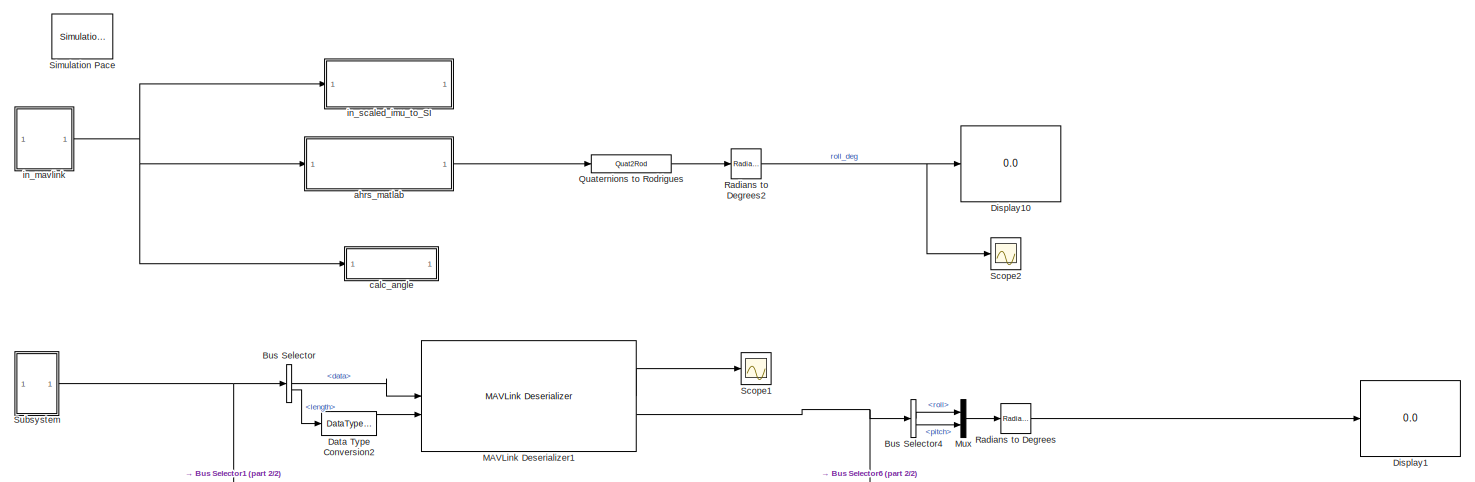
[diagram: root canvas - part 1/2, full width, middle band]
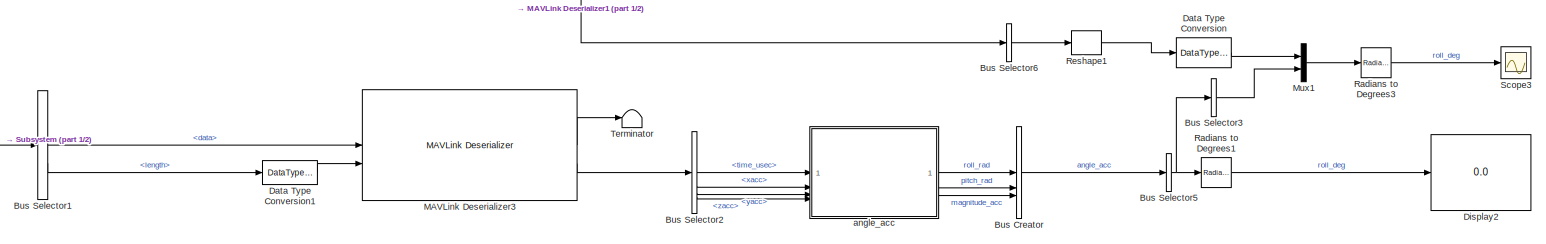
[diagram: root canvas - part 2/2, full width, bottom band]
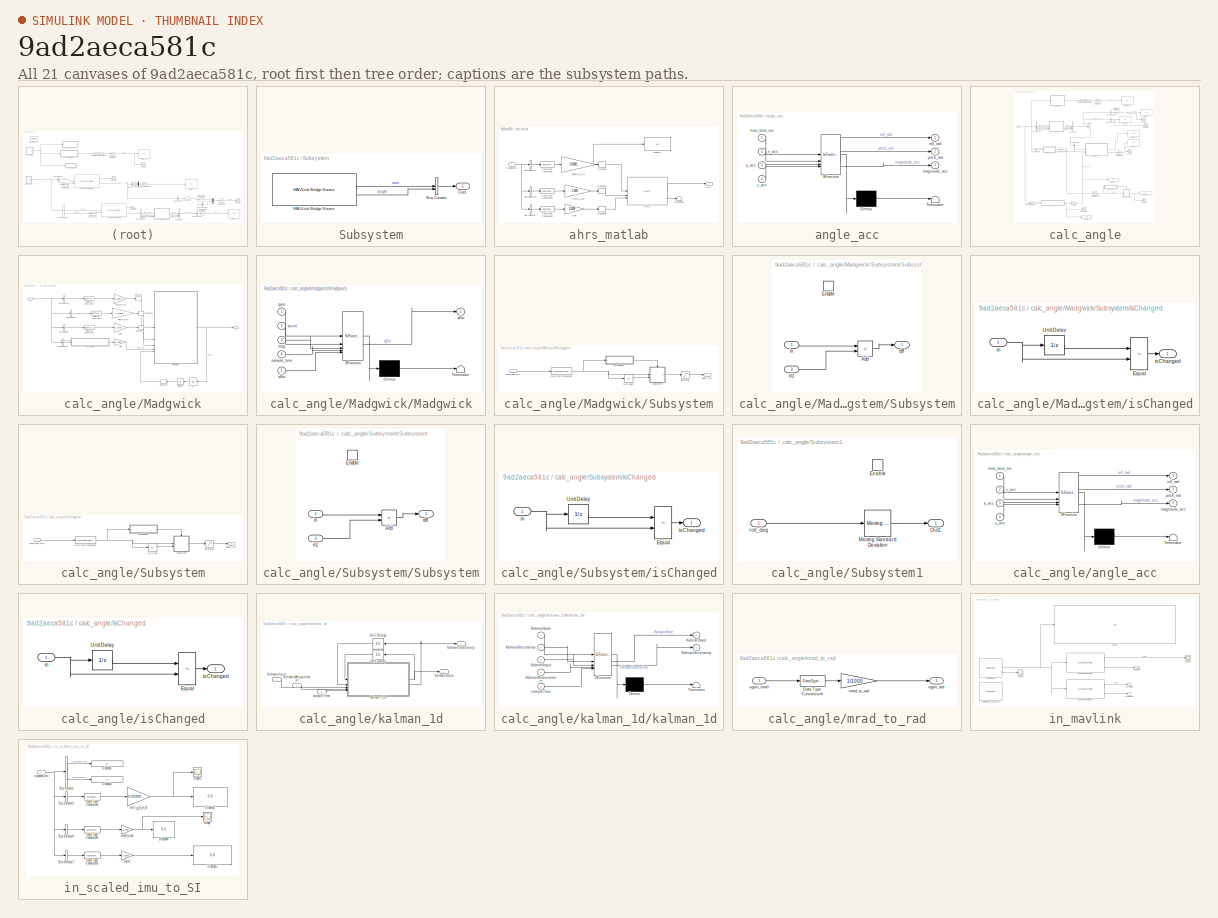
[diagram: thumbnail index - all 21 canvases of the model, root first then tree order]
MODEL slx_9ad2aeca581c
KIND model
CONFIG AbsTol = auto
CONFIG EnableMultiTasking = off
CONFIG FixedStep = sampleTime
CONFIG MaxStep = auto
CONFIG MinStep = auto
CONFIG RelTol = 1e-3
CONFIG SampleTimeConstraint = Unconstrained
CONFIG SolverName = ode4
CONFIG StartTime = 0.0
CONFIG StopTime = 100
BLOCK [BusCreator] Bus Creator
  DisplayOption = bar
  InheritFromInputs = on
  Inputs = 3
BLOCK [BusSelector] Bus Selector
  OutputSignals = data,length
BLOCK [BusSelector] Bus Selector1
  OutputSignals = data,length
BLOCK [BusSelector] Bus Selector2
  OutputSignals = Payload.time_usec,Payload.xacc,Payload.yacc,Payload.zacc
BLOCK [BusSelector] Bus Selector3
  OutputAsBus = on
  OutputSignals = roll_rad
BLOCK [BusSelector] Bus Selector4
  OutputSignals = Payload.roll,Payload.pitch
BLOCK [BusSelector] Bus Selector5
  OutputAsBus = on
  OutputSignals = roll_rad,pitch_rad
BLOCK [BusSelector] Bus Selector6
  OutputAsBus = on
  OutputSignals = Payload.roll
BLOCK [DataTypeConversion] Data Type Conversion
  OutDataTypeStr = double
  RndMeth = Floor
  SaturateOnIntegerOverflow = off
BLOCK [DataTypeConversion] Data Type Conversion1
  RndMeth = Floor
  SaturateOnIntegerOverflow = off
BLOCK [DataTypeConversion] Data Type Conversion2
  RndMeth = Floor
  SaturateOnIntegerOverflow = off
BLOCK [Display] Display1
  Decimation = 1
BLOCK [Display] Display10
  Decimation = 1
BLOCK [Display] Display2
  Decimation = 1
BLOCK [Reference] MAVLink Deserializer1  REF=uavmavlinklib/MAVLink Deserializer
  SourceBlock = uavmavlinklib/MAVLink Deserializer
  SourceType = MAVLink Deserializer
BLOCK [Reference] MAVLink Deserializer3  REF=uavmavlinklib/MAVLink Deserializer
  SourceBlock = uavmavlinklib/MAVLink Deserializer
  SourceType = MAVLink Deserializer
BLOCK [Mux] Mux
  DisplayOption = bar
  Inputs = 2
BLOCK [Mux] Mux1
  DisplayOption = bar
  Inputs = 2
BLOCK [Quat2Rod] Quaternions to Rodrigues
BLOCK [Reference] Radians to Degrees  REF=simulink_extras/Transformations/Radians
to Degrees
  SourceBlock = simulink_extras/Transformations/Radians\nto Degrees
  SourceType = RadiansToDegrees
BLOCK [Reference] Radians to Degrees1  REF=simulink_extras/Transformations/Radians
to Degrees
  SourceBlock = simulink_extras/Transformations/Radians\nto Degrees
  SourceType = RadiansToDegrees
BLOCK [Reference] Radians to Degrees2  REF=simulink_extras/Transformations/Radians
to Degrees
  SourceBlock = simulink_extras/Transformations/Radians\nto Degrees
  SourceType = RadiansToDegrees
BLOCK [Reference] Radians to Degrees3  REF=simulink_extras/Transformations/Radians
to Degrees
  SourceBlock = simulink_extras/Transformations/Radians\nto Degrees
  SourceType = RadiansToDegrees
BLOCK [Reshape] Reshape1
  OutputDimensionality = Customize
BLOCK [Scope] Scope1
  Floating = off
  NumInputPorts = 1
  ScopeSpecificationString = Simulink.scopes.TimeScopeBlockCfg('CurrentConfiguration', extmgr.ConfigurationSet(extmgr.Configuration('Core','General UI',true),extmgr.Configuration('Core','Source UI',true),extmgr.Configuration('Sources','WiredSimulink',true,'DataLoggingVariableName','ScopeData3'),extmgr.Configuration('Visuals','Time Domain',true,'SerializedDisplays',{struct('MinYLimReal','-0.125','MaxYLimReal','1.125','YLabelRe...<+1512ch>
BLOCK [Scope] Scope2
  Floating = off
  NumInputPorts = 1
  ScopeSpecificationString = Simulink.scopes.TimeScopeBlockCfg('CurrentConfiguration', extmgr.ConfigurationSet(extmgr.Configuration('Core','General UI',true),extmgr.Configuration('Core','Source UI',true),extmgr.Configuration('Sources','WiredSimulink',true,'DataLoggingVariableName','ScopeData4'),extmgr.Configuration('Visuals','Time Domain',true,'SerializedDisplays',{struct('MinYLimReal','-132.99946','MaxYLimReal','217.50957','...<+1542ch>
BLOCK [Scope] Scope3
  Floating = off
  NumInputPorts = 1
  ScopeSpecificationString = Simulink.scopes.TimeScopeBlockCfg('CurrentConfiguration', extmgr.ConfigurationSet(extmgr.Configuration('Core','General UI',true),extmgr.Configuration('Core','Source UI',true),extmgr.Configuration('Sources','WiredSimulink',true,'DataLoggingVariableName','ScopeData4'),extmgr.Configuration('Visuals','Time Domain',true,'SerializedDisplays',{struct('MinYLimReal','-46.7465','MaxYLimReal','57.92269','YLa...<+1581ch>
BLOCK [Reference] Simulation Pace  REF=aerolibanimutils/Simulation Pace
  AttributesFormatString = %<SleepMode>\n%<SimulationPace> sec/sec
  SourceBlock = aerolibanimutils/Simulation Pace
  SourceType = Simulation Pace
BLOCK [SubSystem] Subsystem
BLOCK [BusCreator] Subsystem/Bus Creator
  DisplayOption = bar
  InheritFromInputs = on
  Inputs = 2
BLOCK [Reference] Subsystem/MAVLink Bridge Source  REF=px4MAVLinkBridgelib/MAVLink Bridge Source
  SourceBlock = px4MAVLinkBridgelib/MAVLink Bridge Source
  SourceType = px4.internal.block.MAVLinkSource
BLOCK [Outport] Subsystem/Out1
BLOCK [Terminator] Terminator
BLOCK [SubSystem] ahrs_matlab
BLOCK [Reference] ahrs_matlab/AHRS  REF=mspfiltlib/AHRS
  SourceBlock = mspfiltlib/AHRS
  SourceType = fusion.simulink.ahrsfilter
BLOCK [BusSelector] ahrs_matlab/Bus Selector5
  OutputAsBus = on
  OutputSignals = Payload.xacc,Payload.yacc,Payload.zacc
BLOCK [BusSelector] ahrs_matlab/Bus Selector6
  OutputAsBus = on
  OutputSignals = Payload.xgyro,Payload.ygyro,Payload.zgyro
BLOCK [BusSelector] ahrs_matlab/Bus Selector7
  OutputAsBus = on
  OutputSignals = Payload.xmag,Payload.ymag,Payload.zmag
BLOCK [DataTypeConversion] ahrs_matlab/Data Type Conversion
  OutDataTypeStr = double
  RndMeth = Floor
  SaturateOnIntegerOverflow = off
BLOCK [DataTypeConversion] ahrs_matlab/Data Type Conversion1
  OutDataTypeStr = double
  RndMeth = Floor
  SaturateOnIntegerOverflow = off
BLOCK [DataTypeConversion] ahrs_matlab/Data Type Conversion2
  OutDataTypeStr = double
  RndMeth = Floor
  SaturateOnIntegerOverflow = off
BLOCK [Display] ahrs_matlab/Display11
  Decimation = 1
BLOCK [Gain] ahrs_matlab/Gain
  Gain = 1/1000
BLOCK [Outport] ahrs_matlab/Out1
BLOCK [Reshape] ahrs_matlab/Reshape
  OutputDimensionality = Customize
  OutputDimensions = [1,3]
BLOCK [Reshape] ahrs_matlab/Reshape1
  OutputDimensionality = Customize
  OutputDimensions = [1,3]
BLOCK [Reshape] ahrs_matlab/Reshape2
  OutputDimensionality = Customize
  OutputDimensions = [1,3]
BLOCK [Terminator] ahrs_matlab/Terminator
BLOCK [Inport] ahrs_matlab/in_scaled_imu
BLOCK [Gain] ahrs_matlab/milli_g_to_m_s2
  Gain = 0.00980665
BLOCK [Gain] ahrs_matlab/mrad_to_rad
  Gain = 1/1000
BLOCK [SubSystem] angle_acc
  ErrorFcn = Stateflow.Translate.translate
  PermitHierarchicalResolution = ExplicitOnly
  SFBlockType = MATLAB Function
  TreatAsAtomicUnit = on
BLOCK [Demux] angle_acc/ Demux 
  Outputs = 1
BLOCK [S-Function] angle_acc/ SFunction 
  EnableBusSupport = on
  FunctionName = sf_sfun
  PortCounts = [4 4]
  SFcnIsStateOwnerBlock = off
  SFunctionDeploymentMode = off
  Tag = Stateflow S-Function 4
BLOCK [Terminator] angle_acc/ Terminator 
BLOCK [Outport] angle_acc/magnitude_acc
  Port = 3
BLOCK [Outport] angle_acc/pitch_rad
  Port = 2
BLOCK [Outport] angle_acc/roll_rad
BLOCK [Inport] angle_acc/time_boot_ms
BLOCK [Inport] angle_acc/x_acc
  Port = 2
BLOCK [Inport] angle_acc/y_acc
  Port = 3
BLOCK [Inport] angle_acc/z_acc
  Port = 4
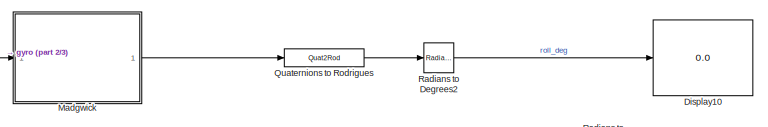
[diagram: calc_angle - part 1/3, top center region]
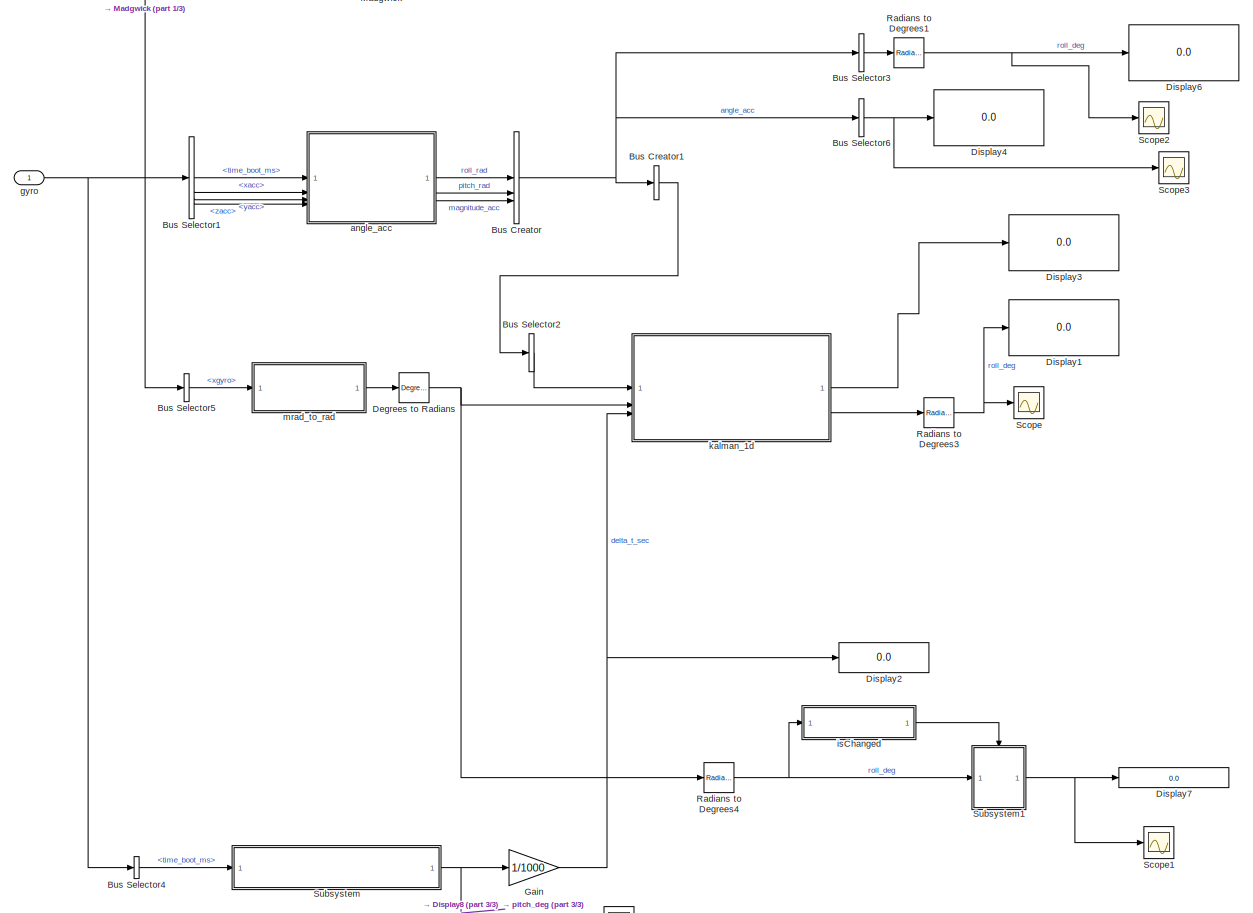
[diagram: calc_angle - part 2/3, most of the canvas]
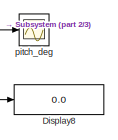
[diagram: calc_angle - part 3/3, bottom center region]
BLOCK [SubSystem] calc_angle
BLOCK [BusCreator] calc_angle/Bus Creator
  DisplayOption = bar
  InheritFromInputs = on
  Inputs = 3
BLOCK [BusCreator] calc_angle/Bus Creator1
  DisplayOption = bar
  InheritFromInputs = on
  Inputs = 1
BLOCK [BusSelector] calc_angle/Bus Selector1
  OutputSignals = Payload.time_boot_ms,Payload.xacc,Payload.yacc,Payload.zacc
BLOCK [BusSelector] calc_angle/Bus Selector2
  OutputAsBus = on
  OutputSignals = angle_acc.roll_rad
BLOCK [BusSelector] calc_angle/Bus Selector3
  OutputAsBus = on
  OutputSignals = roll_rad,pitch_rad
BLOCK [BusSelector] calc_angle/Bus Selector4
  OutputSignals = Payload.time_boot_ms
BLOCK [BusSelector] calc_angle/Bus Selector5
  OutputSignals = Payload.xgyro
BLOCK [BusSelector] calc_angle/Bus Selector6
  OutputAsBus = on
  OutputSignals = magnitude_acc
BLOCK [Reference] calc_angle/Degrees to Radians  REF=simulink_extras/Transformations/Degrees to
Radians
  SourceBlock = simulink_extras/Transformations/Degrees to\nRadians
  SourceType = DegreesToRadians
BLOCK [Display] calc_angle/Display1
  Decimation = 1
BLOCK [Display] calc_angle/Display10
  Decimation = 1
BLOCK [Display] calc_angle/Display2
  Decimation = 1
BLOCK [Display] calc_angle/Display3
  Decimation = 1
BLOCK [Display] calc_angle/Display4
  Decimation = 1
BLOCK [Display] calc_angle/Display6
  Decimation = 1
BLOCK [Display] calc_angle/Display7
  Decimation = 1
  Format = long
BLOCK [Display] calc_angle/Display8
  Decimation = 1
BLOCK [Gain] calc_angle/Gain
  Gain = 1/1000
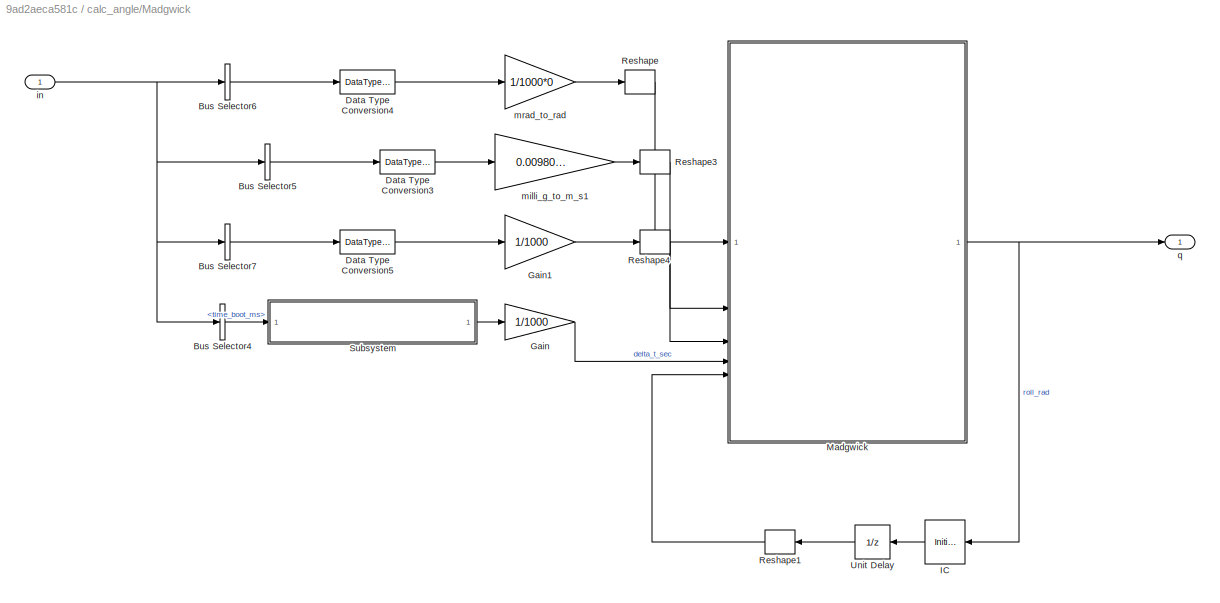
BLOCK [SubSystem] calc_angle/Madgwick
BLOCK [BusSelector] calc_angle/Madgwick/Bus Selector4
  OutputSignals = Payload.time_boot_ms
BLOCK [BusSelector] calc_angle/Madgwick/Bus Selector5
  OutputAsBus = on
  OutputSignals = Payload.xacc,Payload.yacc,Payload.zacc
BLOCK [BusSelector] calc_angle/Madgwick/Bus Selector6
  OutputAsBus = on
  OutputSignals = Payload.xgyro,Payload.ygyro,Payload.zgyro
BLOCK [BusSelector] calc_angle/Madgwick/Bus Selector7
  OutputAsBus = on
  OutputSignals = Payload.xmag,Payload.ymag,Payload.zmag
BLOCK [DataTypeConversion] calc_angle/Madgwick/Data Type Conversion3
  OutDataTypeStr = double
  RndMeth = Floor
  SaturateOnIntegerOverflow = off
BLOCK [DataTypeConversion] calc_angle/Madgwick/Data Type Conversion4
  OutDataTypeStr = double
  RndMeth = Floor
  SaturateOnIntegerOverflow = off
BLOCK [DataTypeConversion] calc_angle/Madgwick/Data Type Conversion5
  OutDataTypeStr = double
  RndMeth = Floor
  SaturateOnIntegerOverflow = off
BLOCK [Gain] calc_angle/Madgwick/Gain
  Gain = 1/1000
BLOCK [Gain] calc_angle/Madgwick/Gain1
  Gain = 1/1000
BLOCK [InitialCondition] calc_angle/Madgwick/IC
  NameLocation = top
  Value = [1 0 0 0]
BLOCK [SubSystem] calc_angle/Madgwick/Madgwick
  ErrorFcn = Stateflow.Translate.translate
  PermitHierarchicalResolution = ExplicitOnly
  SFBlockType = MATLAB Function
  TreatAsAtomicUnit = on
BLOCK [Demux] calc_angle/Madgwick/Madgwick/ Demux 
  Outputs = 1
BLOCK [S-Function] calc_angle/Madgwick/Madgwick/ SFunction 
  EnableBusSupport = on
  FunctionName = sf_sfun
  PortCounts = [5 2]
  SFcnIsStateOwnerBlock = off
  SFunctionDeploymentMode = off
  Tag = Stateflow S-Function 3
BLOCK [Terminator] calc_angle/Madgwick/Madgwick/ Terminator 
BLOCK [Inport] calc_angle/Madgwick/Madgwick/accel
  Port = 2
BLOCK [Inport] calc_angle/Madgwick/Madgwick/gyro
BLOCK [Inport] calc_angle/Madgwick/Madgwick/mag
  Port = 3
BLOCK [Outport] calc_angle/Madgwick/Madgwick/qEst
BLOCK [Inport] calc_angle/Madgwick/Madgwick/qEst 
  Port = 5
BLOCK [Inport] calc_angle/Madgwick/Madgwick/sample_time
  Port = 4
BLOCK [Reshape] calc_angle/Madgwick/Reshape
  OutputDimensionality = Customize
  OutputDimensions = [1,3]
BLOCK [Reshape] calc_angle/Madgwick/Reshape1
  NameLocation = top
  OutputDimensionality = Customize
  OutputDimensions = [1,4]
BLOCK [Reshape] calc_angle/Madgwick/Reshape3
  OutputDimensionality = Customize
  OutputDimensions = [1,3]
BLOCK [Reshape] calc_angle/Madgwick/Reshape4
  OutputDimensionality = Customize
  OutputDimensions = [1,3]
BLOCK [SubSystem] calc_angle/Madgwick/Subsystem
BLOCK [Inport] calc_angle/Madgwick/Subsystem/<time_boot_ms>
BLOCK [DataTypeConversion] calc_angle/Madgwick/Subsystem/Data Type Conversion
  OutDataTypeStr = double
  RndMeth = Floor
  SaturateOnIntegerOverflow = off
BLOCK [Saturate] calc_angle/Madgwick/Subsystem/Saturation
  LowerLimit = 0
  UpperLimit = 1000
BLOCK [SubSystem] calc_angle/Madgwick/Subsystem/Subsystem
BLOCK [Sum] calc_angle/Madgwick/Subsystem/Subsystem/Add
  IconShape = rectangular
  Inputs = +-
BLOCK [EnablePort] calc_angle/Madgwick/Subsystem/Subsystem/Enable
BLOCK [Outport] calc_angle/Madgwick/Subsystem/Subsystem/diff
BLOCK [Inport] calc_angle/Madgwick/Subsystem/Subsystem/in
BLOCK [Inport] calc_angle/Madgwick/Subsystem/Subsystem/in1
  Port = 2
BLOCK [UnitDelay] calc_angle/Madgwick/Subsystem/Unit Delay
  HasFrameUpgradeWarning = on
  SampleTime = -1
BLOCK [Outport] calc_angle/Madgwick/Subsystem/delta_t_ms
BLOCK [SubSystem] calc_angle/Madgwick/Subsystem/isChanged
BLOCK [RelationalOperator] calc_angle/Madgwick/Subsystem/isChanged/Equal
  InputSameDT = off
  Operator = ~=
  OutDataTypeStr = boolean
  RndMeth = Simplest
BLOCK [UnitDelay] calc_angle/Madgwick/Subsystem/isChanged/Unit Delay
  HasFrameUpgradeWarning = on
  SampleTime = -1
BLOCK [Inport] calc_angle/Madgwick/Subsystem/isChanged/in
BLOCK [Outport] calc_angle/Madgwick/Subsystem/isChanged/isChanged
BLOCK [UnitDelay] calc_angle/Madgwick/Unit Delay
  HasFrameUpgradeWarning = on
  NameLocation = top
  SampleTime = -1
BLOCK [Inport] calc_angle/Madgwick/in
BLOCK [Gain] calc_angle/Madgwick/milli_g_to_m_s1
  Gain = 0.00980665
BLOCK [Gain] calc_angle/Madgwick/mrad_to_rad
  Gain = 1/1000*0
BLOCK [Outport] calc_angle/Madgwick/q
BLOCK [Quat2Rod] calc_angle/Quaternions to Rodrigues
BLOCK [Reference] calc_angle/Radians to Degrees1  REF=simulink_extras/Transformations/Radians
to Degrees
  SourceBlock = simulink_extras/Transformations/Radians\nto Degrees
  SourceType = RadiansToDegrees
BLOCK [Reference] calc_angle/Radians to Degrees2  REF=simulink_extras/Transformations/Radians
to Degrees
  SourceBlock = simulink_extras/Transformations/Radians\nto Degrees
  SourceType = RadiansToDegrees
BLOCK [Reference] calc_angle/Radians to Degrees3  REF=simulink_extras/Transformations/Radians
to Degrees
  SourceBlock = simulink_extras/Transformations/Radians\nto Degrees
  SourceType = RadiansToDegrees
BLOCK [Reference] calc_angle/Radians to Degrees4  REF=simulink_extras/Transformations/Radians
to Degrees
  SourceBlock = simulink_extras/Transformations/Radians\nto Degrees
  SourceType = RadiansToDegrees
BLOCK [Scope] calc_angle/Scope
  Floating = off
  NumInputPorts = 1
  ScopeSpecificationString = Simulink.scopes.TimeScopeBlockCfg('CurrentConfiguration', extmgr.ConfigurationSet(extmgr.Configuration('Core','General UI',true),extmgr.Configuration('Core','Source UI',true),extmgr.Configuration('Sources','WiredSimulink',true,'DataLoggingVariableName','ScopeData5'),extmgr.Configuration('Visuals','Time Domain',true,'SerializedDisplays',{struct('MinYLimReal','-40.22301','MaxYLimReal','6.83528','YLa...<+1504ch>
BLOCK [Scope] calc_angle/Scope1
  Floating = off
  NumInputPorts = 1
  ScopeSpecificationString = Simulink.scopes.TimeScopeBlockCfg('CurrentConfiguration', extmgr.ConfigurationSet(extmgr.Configuration('Core','General UI',true),extmgr.Configuration('Core','Source UI',true),extmgr.Configuration('Sources','WiredSimulink',true,'DataLoggingVariableName','ScopeData2'),extmgr.Configuration('Visuals','Time Domain',true,'SerializedDisplays',{struct('MinYLimReal','-0.37747','MaxYLimReal','2.28338','YLab...<+1502ch>
BLOCK [Scope] calc_angle/Scope2
  Floating = off
  NumInputPorts = 1
  ScopeSpecificationString = Simulink.scopes.TimeScopeBlockCfg('CurrentConfiguration', extmgr.ConfigurationSet(extmgr.Configuration('Core','General UI',true),extmgr.Configuration('Core','Source UI',true),extmgr.Configuration('Sources','WiredSimulink',true,'DataLoggingVariableName','ScopeData1'),extmgr.Configuration('Visuals','Time Domain',true,'SerializedDisplays',{struct('MinYLimReal','-55.26633','MaxYLimReal','72.46872','YL...<+1521ch>
BLOCK [Scope] calc_angle/Scope3
  Floating = off
  NumInputPorts = 1
  ScopeSpecificationString = Simulink.scopes.TimeScopeBlockCfg('CurrentConfiguration', extmgr.ConfigurationSet(extmgr.Configuration('Core','General UI',true),extmgr.Configuration('Core','Source UI',true),extmgr.Configuration('Sources','WiredSimulink',true,'DataLoggingVariableName','ScopeData2'),extmgr.Configuration('Visuals','Time Domain',true,'SerializedDisplays',{struct('MinYLimReal','0.86478','MaxYLimReal','1.41302','YLabe...<+1530ch>
BLOCK [SubSystem] calc_angle/Subsystem
BLOCK [Inport] calc_angle/Subsystem/<time_boot_ms>
BLOCK [DataTypeConversion] calc_angle/Subsystem/Data Type Conversion
  OutDataTypeStr = double
  RndMeth = Floor
  SaturateOnIntegerOverflow = off
BLOCK [Saturate] calc_angle/Subsystem/Saturation
  LowerLimit = 0
  UpperLimit = 1000
BLOCK [SubSystem] calc_angle/Subsystem/Subsystem
BLOCK [Sum] calc_angle/Subsystem/Subsystem/Add
  IconShape = rectangular
  Inputs = +-
BLOCK [EnablePort] calc_angle/Subsystem/Subsystem/Enable
BLOCK [Outport] calc_angle/Subsystem/Subsystem/diff
BLOCK [Inport] calc_angle/Subsystem/Subsystem/in
BLOCK [Inport] calc_angle/Subsystem/Subsystem/in1
  Port = 2
BLOCK [UnitDelay] calc_angle/Subsystem/Unit Delay
  HasFrameUpgradeWarning = on
  SampleTime = -1
BLOCK [Outport] calc_angle/Subsystem/delta_t_ms
BLOCK [SubSystem] calc_angle/Subsystem/isChanged
BLOCK [RelationalOperator] calc_angle/Subsystem/isChanged/Equal
  InputSameDT = off
  Operator = ~=
  OutDataTypeStr = boolean
  RndMeth = Simplest
BLOCK [UnitDelay] calc_angle/Subsystem/isChanged/Unit Delay
  HasFrameUpgradeWarning = on
  SampleTime = -1
BLOCK [Inport] calc_angle/Subsystem/isChanged/in
BLOCK [Outport] calc_angle/Subsystem/isChanged/isChanged
BLOCK [SubSystem] calc_angle/Subsystem1
BLOCK [EnablePort] calc_angle/Subsystem1/Enable
BLOCK [Reference] calc_angle/Subsystem1/Moving Standard Deviation  REF=dspstat3/Moving
Standard
Deviation
  SourceBlock = dspstat3/Moving\nStandard\nDeviation
  SourceType = dsp.simulink.MovingStandardDeviation
BLOCK [Outport] calc_angle/Subsystem1/Out1
BLOCK [Inport] calc_angle/Subsystem1/roll_deg
BLOCK [SubSystem] calc_angle/angle_acc
  ErrorFcn = Stateflow.Translate.translate
  PermitHierarchicalResolution = ExplicitOnly
  SFBlockType = MATLAB Function
  TreatAsAtomicUnit = on
BLOCK [Demux] calc_angle/angle_acc/ Demux 
  Outputs = 1
BLOCK [S-Function] calc_angle/angle_acc/ SFunction 
  EnableBusSupport = on
  FunctionName = sf_sfun
  PortCounts = [4 4]
  SFcnIsStateOwnerBlock = off
  SFunctionDeploymentMode = off
  Tag = Stateflow S-Function 2
BLOCK [Terminator] calc_angle/angle_acc/ Terminator 
BLOCK [Outport] calc_angle/angle_acc/magnitude_acc
  Port = 3
BLOCK [Outport] calc_angle/angle_acc/pitch_rad
  Port = 2
BLOCK [Outport] calc_angle/angle_acc/roll_rad
BLOCK [Inport] calc_angle/angle_acc/time_boot_ms
BLOCK [Inport] calc_angle/angle_acc/x_acc
  Port = 2
BLOCK [Inport] calc_angle/angle_acc/y_acc
  Port = 3
BLOCK [Inport] calc_angle/angle_acc/z_acc
  Port = 4
BLOCK [Inport] calc_angle/gyro
BLOCK [SubSystem] calc_angle/isChanged
BLOCK [RelationalOperator] calc_angle/isChanged/Equal
  InputSameDT = off
  Operator = ~=
  OutDataTypeStr = boolean
  RndMeth = Simplest
BLOCK [UnitDelay] calc_angle/isChanged/Unit Delay
  HasFrameUpgradeWarning = on
  SampleTime = -1
BLOCK [Inport] calc_angle/isChanged/in
BLOCK [Outport] calc_angle/isChanged/isChanged
BLOCK [SubSystem] calc_angle/kalman_1d
BLOCK [Inport] calc_angle/kalman_1d/KalmanInput
BLOCK [Inport] calc_angle/kalman_1d/KalmanMeasurement
  Port = 2
BLOCK [Outport] calc_angle/kalman_1d/KalmanState
  Port = 2
BLOCK [Outport] calc_angle/kalman_1d/KalmanUncertainty
BLOCK [UnitDelay] calc_angle/kalman_1d/Unit Delay
  HasFrameUpgradeWarning = on
  NameLocation = top
  SampleTime = -1
BLOCK [UnitDelay] calc_angle/kalman_1d/Unit Delay1
  HasFrameUpgradeWarning = on
  NameLocation = top
  SampleTime = -1
BLOCK [SubSystem] calc_angle/kalman_1d/kalman_1d
  ErrorFcn = Stateflow.Translate.translate
  PermitHierarchicalResolution = ExplicitOnly
  SFBlockType = MATLAB Function
  TreatAsAtomicUnit = on
BLOCK [Demux] calc_angle/kalman_1d/kalman_1d/ Demux 
  Outputs = 1
BLOCK [S-Function] calc_angle/kalman_1d/kalman_1d/ SFunction 
  EnableBusSupport = on
  FunctionName = sf_sfun
  PortCounts = [5 3]
  SFcnIsStateOwnerBlock = off
  SFunctionDeploymentMode = off
  Tag = Stateflow S-Function 1
BLOCK [Terminator] calc_angle/kalman_1d/kalman_1d/ Terminator 
BLOCK [Inport] calc_angle/kalman_1d/kalman_1d/KalmanInput
  Port = 3
BLOCK [Inport] calc_angle/kalman_1d/kalman_1d/KalmanMeasurement
  Port = 4
BLOCK [Outport] calc_angle/kalman_1d/kalman_1d/KalmanState
BLOCK [Inport] calc_angle/kalman_1d/kalman_1d/KalmanState 
BLOCK [Outport] calc_angle/kalman_1d/kalman_1d/KalmanUncertainty
  Port = 2
BLOCK [Inport] calc_angle/kalman_1d/kalman_1d/KalmanUncertainty 
  Port = 2
BLOCK [Inport] calc_angle/kalman_1d/kalman_1d/sampleTime
  Port = 5
BLOCK [Inport] calc_angle/kalman_1d/sampleTime
  Port = 3
BLOCK [SubSystem] calc_angle/mrad_to_rad
BLOCK [DataTypeConversion] calc_angle/mrad_to_rad/Data Type Conversion4
  OutDataTypeStr = double
  RndMeth = Floor
  SaturateOnIntegerOverflow = off
BLOCK [Gain] calc_angle/mrad_to_rad/mrad_to_rad
  Gain = 1/1000
BLOCK [Inport] calc_angle/mrad_to_rad/xgyro_mrad
BLOCK [Outport] calc_angle/mrad_to_rad/xgyro_rad
BLOCK [Scope] calc_angle/pitch_deg
  Floating = off
  NumInputPorts = 1
  ScopeSpecificationString = Simulink.scopes.TimeScopeBlockCfg('CurrentConfiguration', extmgr.ConfigurationSet(extmgr.Configuration('Core','General UI',true),extmgr.Configuration('Core','Source UI',true),extmgr.Configuration('Sources','WiredSimulink',true,'DataLoggingVariableName','ScopeData3'),extmgr.Configuration('Visuals','Time Domain',true,'SerializedDisplays',{struct('MinYLimReal','-86.75','MaxYLimReal','1120.75','YLabel...<+1524ch>
BLOCK [SubSystem] in_mavlink
BLOCK [Display] in_mavlink/Display
  Decimation = 1
BLOCK [Reference] in_mavlink/MAVLink Deserializer  REF=uavmavlinklib/MAVLink Deserializer
  SourceBlock = uavmavlinklib/MAVLink Deserializer
  SourceType = MAVLink Deserializer
BLOCK [Reference] in_mavlink/MAVLink Deserializer1  REF=uavmavlinklib/MAVLink Deserializer
  SourceBlock = uavmavlinklib/MAVLink Deserializer
  SourceType = MAVLink Deserializer
BLOCK [Outport] in_mavlink/MsgOutput
BLOCK [Scope] in_mavlink/Scope
  Floating = off
  NumInputPorts = 1
  ScopeSpecificationString = Simulink.scopes.TimeScopeBlockCfg('CurrentConfiguration', extmgr.ConfigurationSet(extmgr.Configuration('Core','General UI',true),extmgr.Configuration('Core','Source UI',true),extmgr.Configuration('Sources','WiredSimulink',true),extmgr.Configuration('Visuals','Time Domain',true,'SerializedDisplays',{struct('MinYLimReal','-0.0584','MaxYLimReal','1.04816','YLabelReal','','MinYLimMag','0.00000','MaxYL...<+1464ch>
BLOCK [Scope] in_mavlink/Scope1
  Floating = off
  NumInputPorts = 1
  ScopeSpecificationString = Simulink.scopes.TimeScopeBlockCfg('CurrentConfiguration', extmgr.ConfigurationSet(extmgr.Configuration('Core','General UI',true),extmgr.Configuration('Core','Source UI',true),extmgr.Configuration('Sources','WiredSimulink',true,'DataLoggingVariableName','ScopeData1'),extmgr.Configuration('Visuals','Time Domain',true,'SerializedDisplays',{struct('MinYLimReal','-0.125','MaxYLimReal','1.125','YLabelRe...<+1442ch>
BLOCK [Terminator] in_mavlink/Terminator
BLOCK [Terminator] in_mavlink/Terminator1
BLOCK [Reference] in_mavlink/UDP Receive  REF=instrumentlib/UDP Receive
  SourceBlock = instrumentlib/UDP Receive
  SourceType = instrument.system.UDPReceive
BLOCK [Reference] in_mavlink/UDP Receive_QGround  REF=instrumentlib/UDP Receive
  Commented = on
  SourceBlock = instrumentlib/UDP Receive
  SourceType = instrument.system.UDPReceive
BLOCK [SubSystem] in_scaled_imu_to_SI
BLOCK [BusSelector] in_scaled_imu_to_SI/Bus Selector
  OutputSignals = Payload.time_boot_ms,Payload.temperature
BLOCK [BusSelector] in_scaled_imu_to_SI/Bus Selector5
  OutputAsBus = on
  OutputSignals = Payload.xacc,Payload.yacc,Payload.zacc
BLOCK [BusSelector] in_scaled_imu_to_SI/Bus Selector6
  OutputAsBus = on
  OutputSignals = Payload.xgyro,Payload.ygyro,Payload.zgyro
BLOCK [BusSelector] in_scaled_imu_to_SI/Bus Selector7
  OutputAsBus = on
  OutputSignals = Payload.xmag,Payload.ymag,Payload.zmag
BLOCK [DataTypeConversion] in_scaled_imu_to_SI/Data Type Conversion3
  OutDataTypeStr = double
  RndMeth = Floor
  SaturateOnIntegerOverflow = off
BLOCK [DataTypeConversion] in_scaled_imu_to_SI/Data Type Conversion4
  OutDataTypeStr = double
  RndMeth = Floor
  SaturateOnIntegerOverflow = off
BLOCK [DataTypeConversion] in_scaled_imu_to_SI/Data Type Conversion5
  OutDataTypeStr = double
  RndMeth = Floor
  SaturateOnIntegerOverflow = off
BLOCK [Display] in_scaled_imu_to_SI/Display1
  Decimation = 1
  Format = long
BLOCK [Display] in_scaled_imu_to_SI/Display2
  Decimation = 1
BLOCK [Display] in_scaled_imu_to_SI/Display3
  Decimation = 1
  Format = long
BLOCK [Display] in_scaled_imu_to_SI/Display4
  Decimation = 1
BLOCK [Display] in_scaled_imu_to_SI/Display5
  Decimation = 1
BLOCK [Gain] in_scaled_imu_to_SI/Gain1
  Gain = 1/1000
BLOCK [Scope] in_scaled_imu_to_SI/Scope
  Floating = off
  NumInputPorts = 1
  ScopeSpecificationString = Simulink.scopes.TimeScopeBlockCfg('CurrentConfiguration', extmgr.ConfigurationSet(extmgr.Configuration('Core','General UI',true),extmgr.Configuration('Core','Source UI',true),extmgr.Configuration('Sources','WiredSimulink',true,'DataLoggingVariableName','ScopeData6'),extmgr.Configuration('Visuals','Time Domain',true,'SerializedDisplays',{struct('MinYLimReal','-5.45625','MaxYLimReal','5.45625','YLab...<+1535ch>
BLOCK [Scope] in_scaled_imu_to_SI/Scope1
  Floating = off
  NumInputPorts = 1
  ScopeSpecificationString = Simulink.scopes.TimeScopeBlockCfg('CurrentConfiguration', extmgr.ConfigurationSet(extmgr.Configuration('Core','General UI',true),extmgr.Configuration('Core','Source UI',true),extmgr.Configuration('Sources','WiredSimulink',true,'DataLoggingVariableName','ScopeData7'),extmgr.Configuration('Visuals','Time Domain',true,'SerializedDisplays',{struct('MinYLimReal','-14.40474','MaxYLimReal','9.70736','YLa...<+1578ch>
BLOCK [Inport] in_scaled_imu_to_SI/in_scaled_imu
BLOCK [Gain] in_scaled_imu_to_SI/milli_g_to_m_s2
  Gain = 0.00980665
BLOCK [Gain] in_scaled_imu_to_SI/mrad_to_rad
  Gain = 1/1000
LINE Bus Creator:1 -> Bus Selector5:1
LINE Bus Selector1:1 -> MAVLink Deserializer3:1
LINE Bus Selector1:2 -> Data Type Conversion1:1
LINE Bus Selector2:1 -> angle_acc:1
LINE Bus Selector2:2 -> angle_acc:2
LINE Bus Selector2:3 -> angle_acc:3
LINE Bus Selector2:4 -> angle_acc:4
LINE Bus Selector3:1 -> Mux1:2
LINE Bus Selector4:1 -> Mux:1
LINE Bus Selector4:2 -> Mux:2
NET Bus Selector5:1 -> Bus Selector3:1, Radians to Degrees1:1
LINE Bus Selector6:1 -> Reshape1:1
LINE Bus Selector:1 -> MAVLink Deserializer1:1
LINE Bus Selector:2 -> Data Type Conversion2:1
LINE Data Type Conversion1:1 -> MAVLink Deserializer3:2
LINE Data Type Conversion2:1 -> MAVLink Deserializer1:2
LINE Data Type Conversion:1 -> Mux1:1
LINE MAVLink Deserializer1:1 -> Scope1:1
NET MAVLink Deserializer1:2 -> Bus Selector4:1, Bus Selector6:1
LINE MAVLink Deserializer3:1 -> Terminator:1
LINE MAVLink Deserializer3:2 -> Bus Selector2:1
LINE Mux1:1 -> Radians to Degrees3:1
LINE Mux:1 -> Radians to Degrees:1
LINE Quaternions to Rodrigues:1 -> Radians to Degrees2:1
LINE Radians to Degrees1:1 -> Display2:1
NET Radians to Degrees2:1 -> Display10:1, Scope2:1
LINE Radians to Degrees3:1 -> Scope3:1
LINE Radians to Degrees:1 -> Display1:1
LINE Reshape1:1 -> Data Type Conversion:1
LINE Subsystem/Bus Creator:1 -> Subsystem/Out1:1
LINE Subsystem/MAVLink Bridge Source:1 -> Subsystem/Bus Creator:1
LINE Subsystem/MAVLink Bridge Source:2 -> Subsystem/Bus Creator:2
NET Subsystem:1 -> Bus Selector1:1, Bus Selector:1
LINE ahrs_matlab/AHRS:1 -> ahrs_matlab/Out1:1
LINE ahrs_matlab/AHRS:2 -> ahrs_matlab/Terminator:1
LINE ahrs_matlab/Bus Selector5:1 -> ahrs_matlab/Data Type Conversion:1
LINE ahrs_matlab/Bus Selector6:1 -> ahrs_matlab/Data Type Conversion1:1
LINE ahrs_matlab/Bus Selector7:1 -> ahrs_matlab/Data Type Conversion2:1
LINE ahrs_matlab/Data Type Conversion1:1 -> ahrs_matlab/mrad_to_rad:1
LINE ahrs_matlab/Data Type Conversion2:1 -> ahrs_matlab/Gain:1
LINE ahrs_matlab/Data Type Conversion:1 -> ahrs_matlab/milli_g_to_m_s2:1
LINE ahrs_matlab/Gain:1 -> ahrs_matlab/Reshape2:1
LINE ahrs_matlab/Reshape1:1 -> ahrs_matlab/AHRS:2
LINE ahrs_matlab/Reshape2:1 -> ahrs_matlab/AHRS:3
LINE ahrs_matlab/Reshape:1 -> ahrs_matlab/AHRS:1
NET ahrs_matlab/in_scaled_imu:1 -> ahrs_matlab/Bus Selector5:1, ahrs_matlab/Bus Selector6:1, ahrs_matlab/Bus Selector7:1
NET ahrs_matlab/milli_g_to_m_s2:1 -> ahrs_matlab/Display11:1, ahrs_matlab/Reshape:1
LINE ahrs_matlab/mrad_to_rad:1 -> ahrs_matlab/Reshape1:1
LINE ahrs_matlab:1 -> Quaternions to Rodrigues:1
LINE angle_acc:1 -> Bus Creator:1
LINE angle_acc:2 -> Bus Creator:2
LINE angle_acc:3 -> Bus Creator:3
LINE calc_angle/Bus Creator1:1 -> calc_angle/Bus Selector2:1
NET calc_angle/Bus Creator:1 -> calc_angle/Bus Creator1:1, calc_angle/Bus Selector3:1, calc_angle/Bus Selector6:1
LINE calc_angle/Bus Selector1:1 -> calc_angle/angle_acc:1
LINE calc_angle/Bus Selector1:2 -> calc_angle/angle_acc:2
LINE calc_angle/Bus Selector1:3 -> calc_angle/angle_acc:3
LINE calc_angle/Bus Selector1:4 -> calc_angle/angle_acc:4
LINE calc_angle/Bus Selector2:1 -> calc_angle/kalman_1d:1
LINE calc_angle/Bus Selector3:1 -> calc_angle/Radians to Degrees1:1
LINE calc_angle/Bus Selector4:1 -> calc_angle/Subsystem:1
LINE calc_angle/Bus Selector5:1 -> calc_angle/mrad_to_rad:1
NET calc_angle/Bus Selector6:1 -> calc_angle/Display4:1, calc_angle/Scope3:1
NET calc_angle/Degrees to Radians:1 -> calc_angle/Radians to Degrees4:1, calc_angle/kalman_1d:2
NET calc_angle/Gain:1 -> calc_angle/Display2:1, calc_angle/kalman_1d:3
LINE calc_angle/Madgwick/Bus Selector4:1 -> calc_angle/Madgwick/Subsystem:1
LINE calc_angle/Madgwick/Bus Selector5:1 -> calc_angle/Madgwick/Data Type Conversion3:1
LINE calc_angle/Madgwick/Bus Selector6:1 -> calc_angle/Madgwick/Data Type Conversion4:1
LINE calc_angle/Madgwick/Bus Selector7:1 -> calc_angle/Madgwick/Data Type Conversion5:1
LINE calc_angle/Madgwick/Data Type Conversion3:1 -> calc_angle/Madgwick/milli_g_to_m_s1:1
LINE calc_angle/Madgwick/Data Type Conversion4:1 -> calc_angle/Madgwick/mrad_to_rad:1
LINE calc_angle/Madgwick/Data Type Conversion5:1 -> calc_angle/Madgwick/Gain1:1
LINE calc_angle/Madgwick/Gain1:1 -> calc_angle/Madgwick/Reshape4:1
LINE calc_angle/Madgwick/Gain:1 -> calc_angle/Madgwick/Madgwick:4
LINE calc_angle/Madgwick/IC:1 -> calc_angle/Madgwick/Unit Delay:1
NET calc_angle/Madgwick/Madgwick:1 -> calc_angle/Madgwick/IC:1, calc_angle/Madgwick/q:1
LINE calc_angle/Madgwick/Reshape1:1 -> calc_angle/Madgwick/Madgwick:5
LINE calc_angle/Madgwick/Reshape3:1 -> calc_angle/Madgwick/Madgwick:2
LINE calc_angle/Madgwick/Reshape4:1 -> calc_angle/Madgwick/Madgwick:3
LINE calc_angle/Madgwick/Reshape:1 -> calc_angle/Madgwick/Madgwick:1
LINE calc_angle/Madgwick/Subsystem/<time_boot_ms>:1 -> calc_angle/Madgwick/Subsystem/Data Type Conversion:1
NET calc_angle/Madgwick/Subsystem/Data Type Conversion:1 -> calc_angle/Madgwick/Subsystem/Subsystem:1, calc_angle/Madgwick/Subsystem/Unit Delay:1, calc_angle/Madgwick/Subsystem/isChanged:1
LINE calc_angle/Madgwick/Subsystem/Saturation:1 -> calc_angle/Madgwick/Subsystem/delta_t_ms:1
LINE calc_angle/Madgwick/Subsystem/Subsystem/Add:1 -> calc_angle/Madgwick/Subsystem/Subsystem/diff:1
LINE calc_angle/Madgwick/Subsystem/Subsystem/in1:1 -> calc_angle/Madgwick/Subsystem/Subsystem/Add:2
LINE calc_angle/Madgwick/Subsystem/Subsystem/in:1 -> calc_angle/Madgwick/Subsystem/Subsystem/Add:1
LINE calc_angle/Madgwick/Subsystem/Subsystem:1 -> calc_angle/Madgwick/Subsystem/Saturation:1
LINE calc_angle/Madgwick/Subsystem/Unit Delay:1 -> calc_angle/Madgwick/Subsystem/Subsystem:2
LINE calc_angle/Madgwick/Subsystem/isChanged/Equal:1 -> calc_angle/Madgwick/Subsystem/isChanged/isChanged:1
LINE calc_angle/Madgwick/Subsystem/isChanged/Unit Delay:1 -> calc_angle/Madgwick/Subsystem/isChanged/Equal:1
NET calc_angle/Madgwick/Subsystem/isChanged/in:1 -> calc_angle/Madgwick/Subsystem/isChanged/Equal:2, calc_angle/Madgwick/Subsystem/isChanged/Unit Delay:1
LINE calc_angle/Madgwick/Subsystem/isChanged:1 -> calc_angle/Madgwick/Subsystem/Subsystem:enable
LINE calc_angle/Madgwick/Subsystem:1 -> calc_angle/Madgwick/Gain:1
LINE calc_angle/Madgwick/Unit Delay:1 -> calc_angle/Madgwick/Reshape1:1
NET calc_angle/Madgwick/in:1 -> calc_angle/Madgwick/Bus Selector4:1, calc_angle/Madgwick/Bus Selector5:1, calc_angle/Madgwick/Bus Selector6:1, calc_angle/Madgwick/Bus Selector7:1
LINE calc_angle/Madgwick/milli_g_to_m_s1:1 -> calc_angle/Madgwick/Reshape3:1
LINE calc_angle/Madgwick/mrad_to_rad:1 -> calc_angle/Madgwick/Reshape:1
LINE calc_angle/Madgwick:1 -> calc_angle/Quaternions to Rodrigues:1
LINE calc_angle/Quaternions to Rodrigues:1 -> calc_angle/Radians to Degrees2:1
NET calc_angle/Radians to Degrees1:1 -> calc_angle/Display6:1, calc_angle/Scope2:1
LINE calc_angle/Radians to Degrees2:1 -> calc_angle/Display10:1
NET calc_angle/Radians to Degrees3:1 -> calc_angle/Display1:1, calc_angle/Scope:1
NET calc_angle/Radians to Degrees4:1 -> calc_angle/Subsystem1:1, calc_angle/isChanged:1
LINE calc_angle/Subsystem/<time_boot_ms>:1 -> calc_angle/Subsystem/Data Type Conversion:1
NET calc_angle/Subsystem/Data Type Conversion:1 -> calc_angle/Subsystem/Subsystem:1, calc_angle/Subsystem/Unit Delay:1, calc_angle/Subsystem/isChanged:1
LINE calc_angle/Subsystem/Saturation:1 -> calc_angle/Subsystem/delta_t_ms:1
LINE calc_angle/Subsystem/Subsystem/Add:1 -> calc_angle/Subsystem/Subsystem/diff:1
LINE calc_angle/Subsystem/Subsystem/in1:1 -> calc_angle/Subsystem/Subsystem/Add:2
LINE calc_angle/Subsystem/Subsystem/in:1 -> calc_angle/Subsystem/Subsystem/Add:1
LINE calc_angle/Subsystem/Subsystem:1 -> calc_angle/Subsystem/Saturation:1
LINE calc_angle/Subsystem/Unit Delay:1 -> calc_angle/Subsystem/Subsystem:2
LINE calc_angle/Subsystem/isChanged/Equal:1 -> calc_angle/Subsystem/isChanged/isChanged:1
LINE calc_angle/Subsystem/isChanged/Unit Delay:1 -> calc_angle/Subsystem/isChanged/Equal:1
NET calc_angle/Subsystem/isChanged/in:1 -> calc_angle/Subsystem/isChanged/Equal:2, calc_angle/Subsystem/isChanged/Unit Delay:1
LINE calc_angle/Subsystem/isChanged:1 -> calc_angle/Subsystem/Subsystem:enable
LINE calc_angle/Subsystem1/Moving Standard Deviation:1 -> calc_angle/Subsystem1/Out1:1
LINE calc_angle/Subsystem1/roll_deg:1 -> calc_angle/Subsystem1/Moving Standard Deviation:1
NET calc_angle/Subsystem1:1 -> calc_angle/Display7:1, calc_angle/Scope1:1
NET calc_angle/Subsystem:1 -> calc_angle/Display8:1, calc_angle/Gain:1, calc_angle/pitch_deg:1
LINE calc_angle/angle_acc:1 -> calc_angle/Bus Creator:1
LINE calc_angle/angle_acc:2 -> calc_angle/Bus Creator:2
LINE calc_angle/angle_acc:3 -> calc_angle/Bus Creator:3
NET calc_angle/gyro:1 -> calc_angle/Bus Selector1:1, calc_angle/Bus Selector4:1, calc_angle/Bus Selector5:1, calc_angle/Madgwick:1
LINE calc_angle/isChanged/Equal:1 -> calc_angle/isChanged/isChanged:1
LINE calc_angle/isChanged/Unit Delay:1 -> calc_angle/isChanged/Equal:1
NET calc_angle/isChanged/in:1 -> calc_angle/isChanged/Equal:2, calc_angle/isChanged/Unit Delay:1
LINE calc_angle/isChanged:1 -> calc_angle/Subsystem1:enable
LINE calc_angle/kalman_1d/KalmanInput:1 -> calc_angle/kalman_1d/kalman_1d:3
LINE calc_angle/kalman_1d/KalmanMeasurement:1 -> calc_angle/kalman_1d/kalman_1d:4
LINE calc_angle/kalman_1d/Unit Delay1:1 -> calc_angle/kalman_1d/kalman_1d:2
LINE calc_angle/kalman_1d/Unit Delay:1 -> calc_angle/kalman_1d/kalman_1d:1
NET calc_angle/kalman_1d/kalman_1d:1 -> calc_angle/kalman_1d/KalmanState:1, calc_angle/kalman_1d/Unit Delay:1
NET calc_angle/kalman_1d/kalman_1d:2 -> calc_angle/kalman_1d/KalmanUncertainty:1, calc_angle/kalman_1d/Unit Delay1:1
LINE calc_angle/kalman_1d/sampleTime:1 -> calc_angle/kalman_1d/kalman_1d:5
LINE calc_angle/kalman_1d:1 -> calc_angle/Display3:1
LINE calc_angle/kalman_1d:2 -> calc_angle/Radians to Degrees3:1
LINE calc_angle/mrad_to_rad/Data Type Conversion4:1 -> calc_angle/mrad_to_rad/mrad_to_rad:1
LINE calc_angle/mrad_to_rad/mrad_to_rad:1 -> calc_angle/mrad_to_rad/xgyro_rad:1
LINE calc_angle/mrad_to_rad/xgyro_mrad:1 -> calc_angle/mrad_to_rad/Data Type Conversion4:1
LINE calc_angle/mrad_to_rad:1 -> calc_angle/Degrees to Radians:1
LINE in_mavlink/MAVLink Deserializer1:1 -> in_mavlink/Terminator:1
LINE in_mavlink/MAVLink Deserializer1:2 -> in_mavlink/Terminator1:1
LINE in_mavlink/MAVLink Deserializer:1 -> in_mavlink/Scope1:1
LINE in_mavlink/MAVLink Deserializer:2 -> in_mavlink/MsgOutput:1
NET in_mavlink/UDP Receive:1 -> in_mavlink/Display:1, in_mavlink/MAVLink Deserializer1:1, in_mavlink/MAVLink Deserializer:1
LINE in_mavlink/UDP Receive:2 -> in_mavlink/Scope:1
NET in_mavlink:1 -> ahrs_matlab:1, calc_angle:1, in_scaled_imu_to_SI:1
LINE in_scaled_imu_to_SI/Bus Selector5:1 -> in_scaled_imu_to_SI/Data Type Conversion3:1
LINE in_scaled_imu_to_SI/Bus Selector6:1 -> in_scaled_imu_to_SI/Data Type Conversion4:1
LINE in_scaled_imu_to_SI/Bus Selector7:1 -> in_scaled_imu_to_SI/Data Type Conversion5:1
LINE in_scaled_imu_to_SI/Bus Selector:1 -> in_scaled_imu_to_SI/Display1:1
LINE in_scaled_imu_to_SI/Bus Selector:2 -> in_scaled_imu_to_SI/Display3:1
LINE in_scaled_imu_to_SI/Data Type Conversion3:1 -> in_scaled_imu_to_SI/milli_g_to_m_s2:1
LINE in_scaled_imu_to_SI/Data Type Conversion4:1 -> in_scaled_imu_to_SI/mrad_to_rad:1
LINE in_scaled_imu_to_SI/Data Type Conversion5:1 -> in_scaled_imu_to_SI/Gain1:1
LINE in_scaled_imu_to_SI/Gain1:1 -> in_scaled_imu_to_SI/Display5:1
NET in_scaled_imu_to_SI/in_scaled_imu:1 -> in_scaled_imu_to_SI/Bus Selector5:1, in_scaled_imu_to_SI/Bus Selector6:1, in_scaled_imu_to_SI/Bus Selector7:1, in_scaled_imu_to_SI/Bus Selector:1
NET in_scaled_imu_to_SI/milli_g_to_m_s2:1 -> in_scaled_imu_to_SI/Display2:1, in_scaled_imu_to_SI/Scope1:1
NET in_scaled_imu_to_SI/mrad_to_rad:1 -> in_scaled_imu_to_SI/Display4:1, in_scaled_imu_to_SI/Scope:1
note: NET lines group one-source signal fan-out (src -> all destinations, sorted); 1:1 wires keep LINE
CHART calc_angle/kalman_1d/kalman_1d states=1 transitions=1
  STATE_LABEL 'eML_blk_kernel()'
  STATE_LABEL 'SCRIPT:\n% https://www.youtube.com/watch?v=5HuN9iL-zxU&list=PLeuMA6tJBPKsAfRfFuGrEljpBow5hPVD4&index=18&ab_channel=CarbonAeronautics\n\nfunction [KalmanState,KalmanUncertainty]  = fcn(KalmanState, KalmanUncertainty, KalmanInput, KalmanMeasurement,sampleTime)\n% float KalmanAngleRoll=0, KalmanUncertaintyAngleRoll=2*2;\n% float KalmanAnglePitch=0, KalmanUncertaintyAnglePitch=2*2;\n% float Kalman1DOutput[]...<+876ch>'
CHART calc_angle/angle_acc states=1 transitions=1
  STATE_LABEL 'eML_blk_kernel()'
  STATE_LABEL 'SCRIPT:\n%% References : https://www.youtube.com/watch?v=7VW_XVbtu9k&list=PLeuMA6tJBPKsAfRfFuGrEljpBow5hPVD4&index=17&ab_channel=CarbonAeronautics\n\nfunction [roll_rad,pitch_rad,magnitude_acc] = fcn(time_boot_ms,x_acc,y_acc,z_acc)\n\npersistent roll_rad_pre pitch_rad_pre\nif(isempty(roll_rad_pre))\nroll_rad_pre = 0;\npitch_rad_pre = 0;\nend\n\nx_acc = double(x_acc);\ny_acc = double(y_acc);\nz_acc = double(z_a...<+487ch>'
CHART calc_angle/Madgwick/Madgwick states=1 transitions=1
  STATE_LABEL 'eML_blk_kernel()'
  STATE_LABEL 'SCRIPT:\n\n\n%  Refeences : https://www.olliw.eu/2013/imu-data-fusing/\n% https://github.com/memsindustrygroup/Open-Source-Sensor-Fusion/tree/master/docs\n\nfunction qEst  = fcn(gyro, accel, mag, sample_time,qEst)\n%% Madgwick Filter Implementation\n%  Source: https://x-io.co.uk/open-source-imu-and-ahrs-algorithms/\n\n% persistent qEst\n% if isempty(qEst)\n%     qEst = [1; 0; 0; 0]; % Initial orientation quat...<+3608ch>'
CHART angle_acc states=1 transitions=1
  STATE_LABEL 'eML_blk_kernel()'
  STATE_LABEL 'SCRIPT:\n%% References : https://www.youtube.com/watch?v=7VW_XVbtu9k&list=PLeuMA6tJBPKsAfRfFuGrEljpBow5hPVD4&index=17&ab_channel=CarbonAeronautics\n\nfunction [roll_rad,pitch_rad,magnitude_acc] = fcn(time_boot_ms,x_acc,y_acc,z_acc)\n\npersistent roll_rad_pre pitch_rad_pre\nif(isempty(roll_rad_pre))\nroll_rad_pre = 0;\npitch_rad_pre = 0;\nend\n\nx_acc = double(x_acc);\ny_acc = double(y_acc);\nz_acc = double(z_a...<+487ch>'
CHART  states=0 transitions=0
CHART  states=0 transitions=0
CHART  states=0 transitions=0
CHART  states=0 transitions=0
